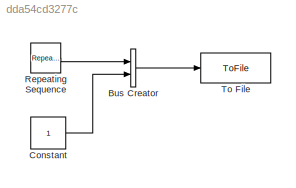
MODEL slx_dda54cd3277c
KIND model
BLOCK [BusCreator] Bus Creator
  DisplayOption = bar
  Inputs = 2
  Ports = [2, 1]
BLOCK [Constant] Constant
BLOCK [Reference] Repeating Sequence  REF=simulink/Sources/Repeating
Sequence
  Ports = [0, 1]
  SourceBlock = simulink/Sources/Repeating\nSequence
  SourceType = Repeating table
  rep_seq_t = [0 2]
  rep_seq_y = [0 2]
BLOCK [ToFile] To File
  Filename = mat_bus.mat
  MatrixName = bus_sig
  Ports = [1]
  SaveFormat = Timeseries
LINE Bus Creator:1 -> To File:1
LINE Constant:1 -> Bus Creator:2
LINE Repeating Sequence:1 -> Bus Creator:1
